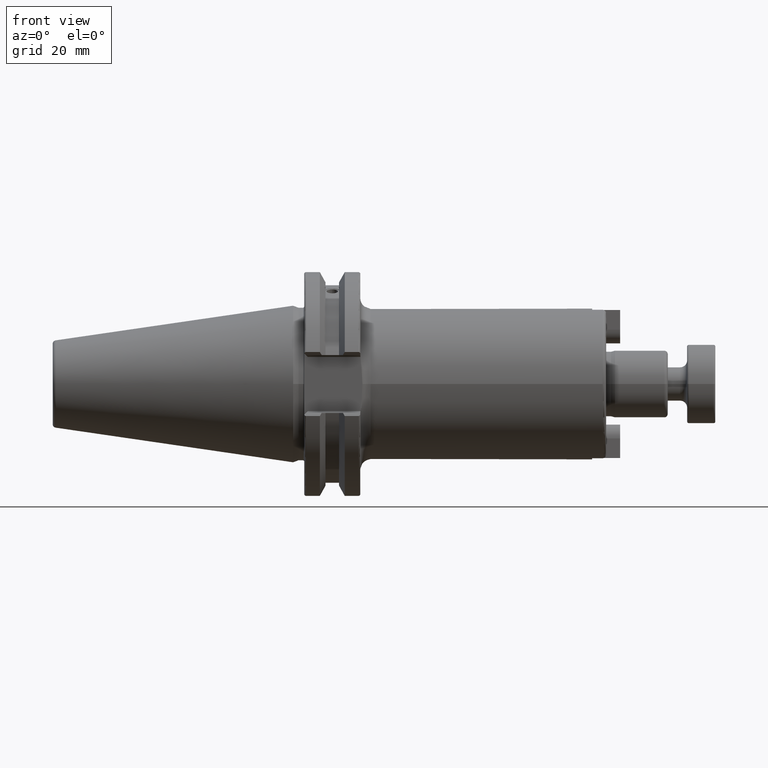
[diagram: clean part render]
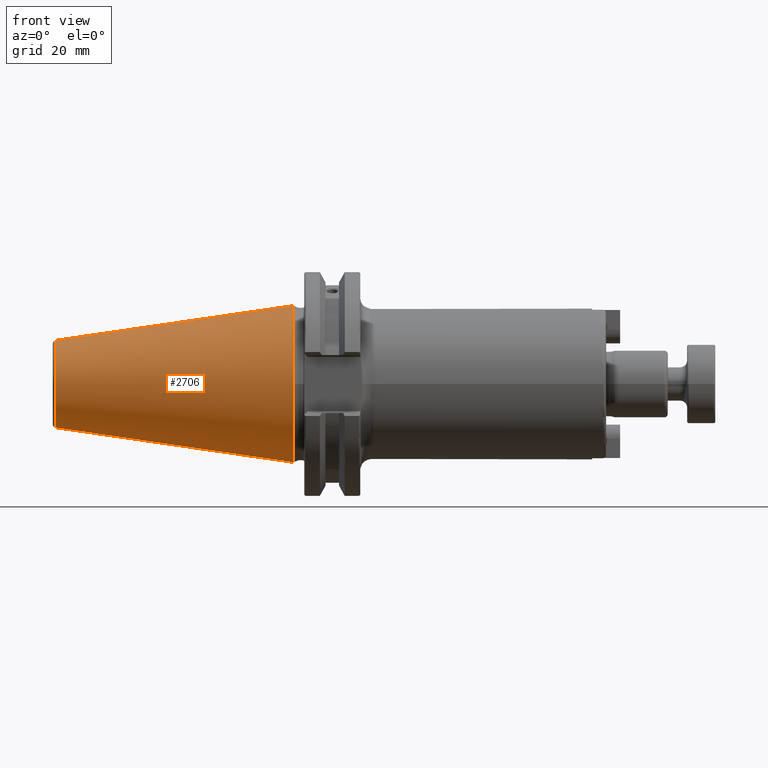
[diagram: same view with one face highlighted and labeled with its STEP entity id]
A machine part, front view. The second image highlights one B-rep face of the part: STEP entity #2706.
In plain terms, the highlighted conical surface has half-angle 8.297 deg.
Its self-contained STEP definition (entity closure, byte-faithful):
#47=CARTESIAN_POINT('',(-2.653319169039E0,0.E0,0.E0));
#48=DIRECTION('',(-1.E0,0.E0,0.E0));
#49=DIRECTION('',(0.E0,0.E0,-1.E0));
#50=AXIS2_PLACEMENT_3D('',#47,#48,#49);
#52=DIRECTION('',(-9.895329809873E-1,-1.311327528584E-12,-1.443068935927E-1));
#53=VECTOR('',#52,2.681385279743E0);
#54=CARTESIAN_POINT('',(0.E0,0.E0,8.75E-1));
#55=LINE('',#54,#53);
#56=CARTESIAN_POINT('',(0.E0,0.E0,0.E0));
#57=DIRECTION('',(1.E0,0.E0,0.E0));
#58=DIRECTION('',(0.E0,0.E0,1.E0));
#59=AXIS2_PLACEMENT_3D('',#56,#57,#58);
#61=CARTESIAN_POINT('',(0.E0,0.E0,0.E0));
#62=DIRECTION('',(1.E0,0.E0,0.E0));
#63=DIRECTION('',(0.E0,-1.E0,0.E0));
#64=AXIS2_PLACEMENT_3D('',#61,#62,#63);
#66=DIRECTION('',(-9.895329809873E-1,1.311285021180E-12,1.443068935927E-1));
#67=VECTOR('',#66,2.681385279743E0);
#68=CARTESIAN_POINT('',(0.E0,0.E0,-8.75E-1));
#69=LINE('',#68,#67);
#2250=CARTESIAN_POINT('',(-2.653319169039E0,0.E0,-4.880576197553E-1));
#2251=CARTESIAN_POINT('',(-2.653319169039E0,0.E0,4.880576197553E-1));
#2252=VERTEX_POINT('',#2250);
#2253=VERTEX_POINT('',#2251);
#2266=CARTESIAN_POINT('',(0.E0,-8.75E-1,-6.432534773168E-10));
#2267=VERTEX_POINT('',#2266);
#2270=CARTESIAN_POINT('',(0.E0,0.E0,8.75E-1));
#2271=VERTEX_POINT('',#2270);
#2272=CARTESIAN_POINT('',(0.E0,0.E0,-8.75E-1));
#2273=VERTEX_POINT('',#2272);
#2692=CARTESIAN_POINT('',(-1.326659584520E0,0.E0,0.E0));
#2693=DIRECTION('',(1.E0,0.E0,0.E0));
#2694=DIRECTION('',(0.E0,0.E0,1.E0));
#2695=AXIS2_PLACEMENT_3D('',#2692,#2693,#2694);
#2696=CONICAL_SURFACE('',#2695,6.815288098776E-1,8.297145E0);
#2697=ORIENTED_EDGE('',*,*,#2686,.T.);
#2698=ORIENTED_EDGE('',*,*,#2642,.F.);
#2700=ORIENTED_EDGE('',*,*,#2699,.T.);
#2702=ORIENTED_EDGE('',*,*,#2701,.T.);
#2703=ORIENTED_EDGE('',*,*,#2636,.T.);
#2704=EDGE_LOOP('',(#2697,#2698,#2700,#2702,#2703));
#2705=FACE_OUTER_BOUND('',#2704,.F.);
#2706=ADVANCED_FACE('',(#2705),#2696,.T.);
#51=CIRCLE('',#50,4.880576197553E-1);
#60=CIRCLE('',#59,8.75E-1);
#65=CIRCLE('',#64,8.75E-1);
#2636=EDGE_CURVE('',#2273,#2252,#69,.T.);
#2642=EDGE_CURVE('',#2271,#2253,#55,.T.);
#2686=EDGE_CURVE('',#2252,#2253,#51,.T.);
#2699=EDGE_CURVE('',#2271,#2267,#60,.T.);
#2701=EDGE_CURVE('',#2267,#2273,#65,.T.);